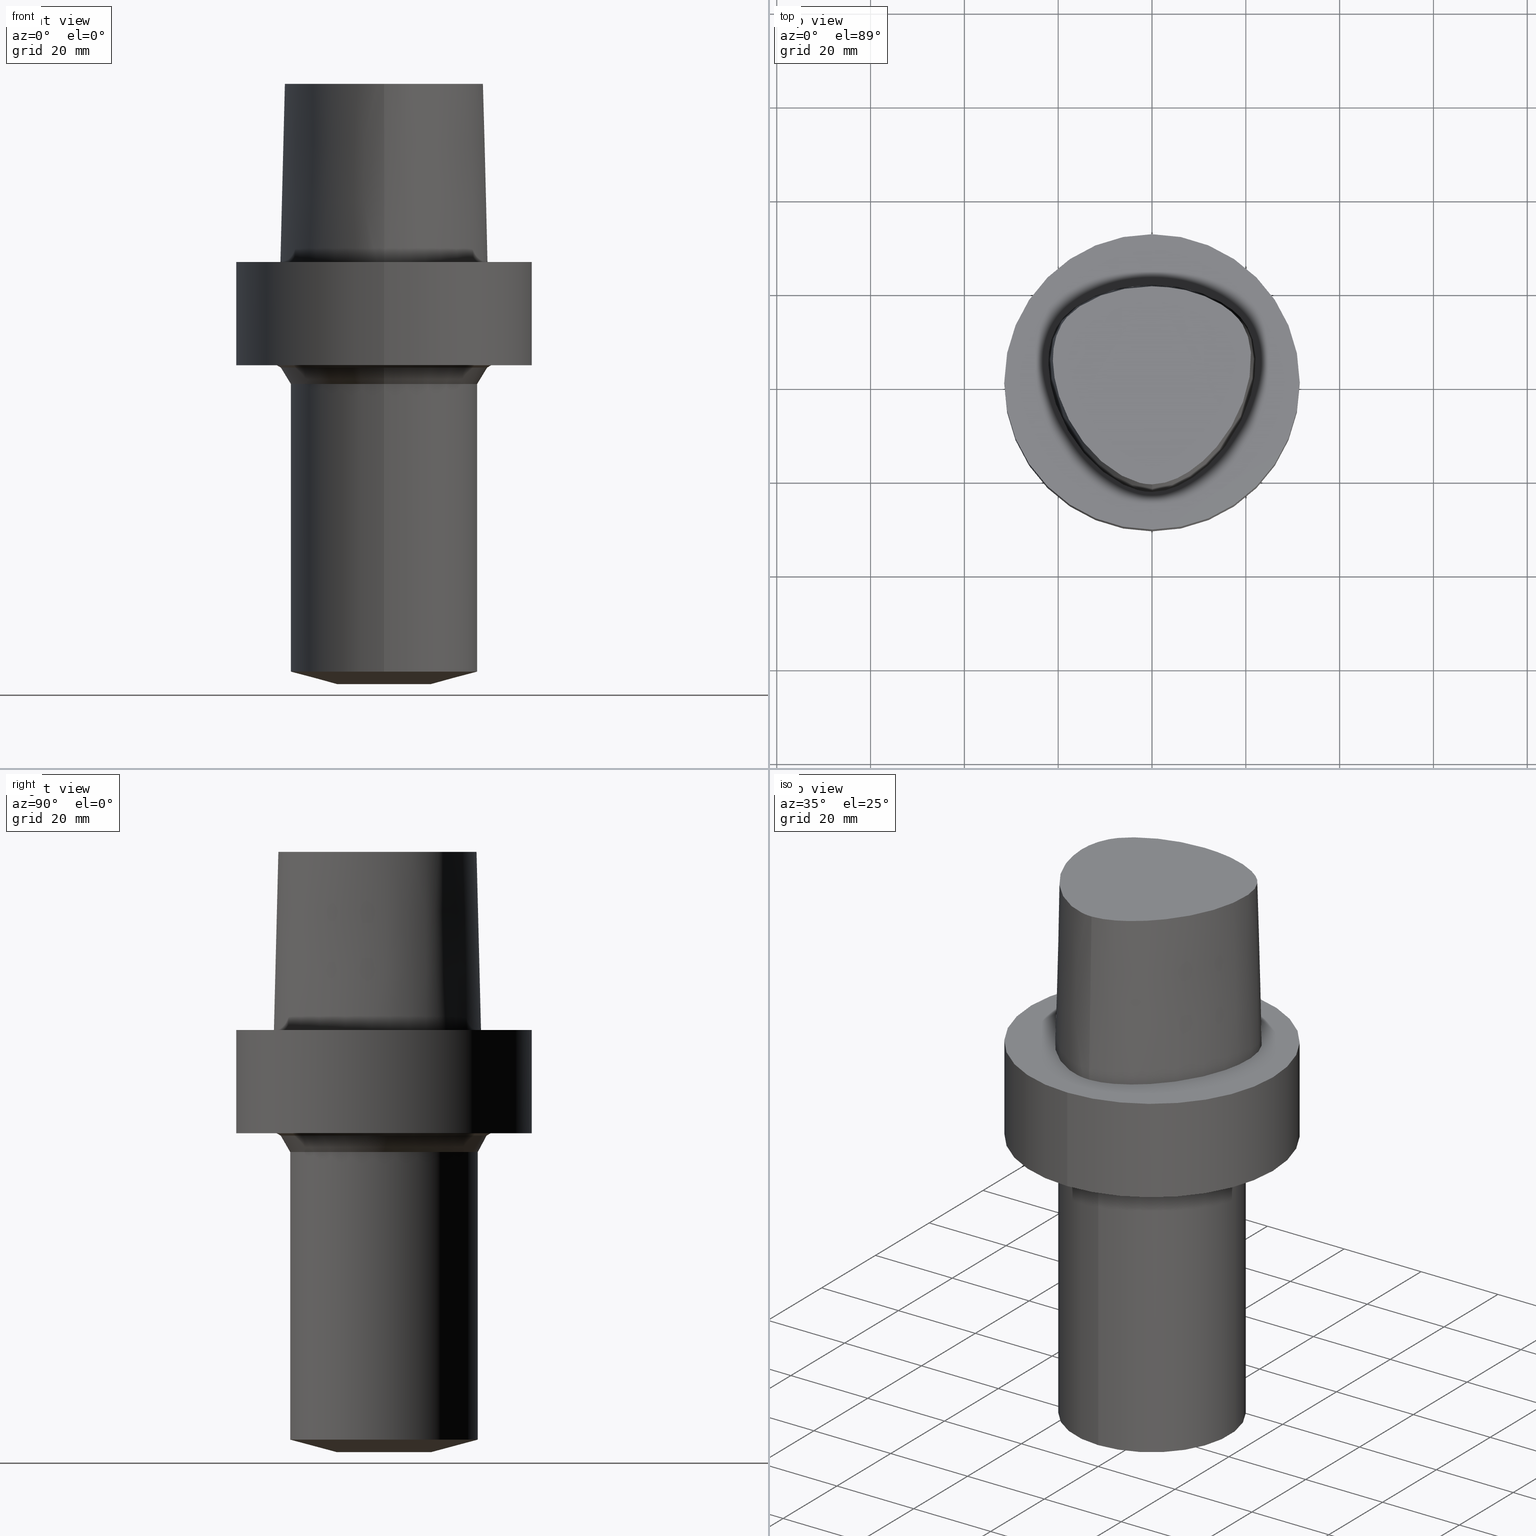
[diagram: canonical four-view strip — front | top / right | iso, engineering-drawing reading convention]
A machine part, canonical four-view strip (front | top / right | iso — engineering-drawing reading convention). The complete STEP part file that produces these views, byte-faithful:
ISO-10303-21;
HEADER;
FILE_DESCRIPTION((''),'1');
FILE_NAME('C:/temp/C6-BSL16-90.stp','2010-11-16T10:19:13',(''),(''),'Spatial Interop R18','Kubotek KeyCreator V8.5.1 (14335)',' ');
FILE_SCHEMA(('CONFIG_CONTROL_DESIGN'));
ENDSEC;
DATA;
#1=DESIGN_CONTEXT('',#27,'design');
#2=APPLICATION_PROTOCOL_DEFINITION('INTERNATIONAL STANDARD','config_control_design',1994,#27);
#3=PRODUCT_CATEGORY_RELATIONSHIP('NONE','NONE',#28,#29);
#4=DATE_AND_TIME(#30,#31);
#5=DATE_TIME_ROLE('creation_date');
#6=DATE_TIME_ROLE('classification_date');
#7=PERSON_AND_ORGANIZATION_ROLE('creator');
#8=PERSON_AND_ORGANIZATION_ROLE('design_supplier');
#9=PERSON_AND_ORGANIZATION_ROLE('classification_officer');
#10=PERSON_AND_ORGANIZATION_ROLE('design_owner');
#11=APPROVAL_PERSON_ORGANIZATION(#32,#33,#34);
#12=APPROVAL_DATE_TIME(#4,#33);
#13=CC_DESIGN_APPROVAL(#33,(#35,#36,#37));
#14=CC_DESIGN_DATE_AND_TIME_ASSIGNMENT(#4,#5,(#37));
#15=CC_DESIGN_DATE_AND_TIME_ASSIGNMENT(#4,#6,(#35));
#16=CC_DESIGN_PERSON_AND_ORGANIZATION_ASSIGNMENT(#32,#10,(#38));
#17=CC_DESIGN_PERSON_AND_ORGANIZATION_ASSIGNMENT(#32,#7,(#37));
#18=CC_DESIGN_PERSON_AND_ORGANIZATION_ASSIGNMENT(#32,#7,(#36));
#19=CC_DESIGN_PERSON_AND_ORGANIZATION_ASSIGNMENT(#32,#8,(#36));
#20=CC_DESIGN_SECURITY_CLASSIFICATION(#35,(#36));
#21=CC_DESIGN_PERSON_AND_ORGANIZATION_ASSIGNMENT(#32,#9,(#35));
#22=SHAPE_DEFINITION_REPRESENTATION(#39,#40);
#23= (GEOMETRIC_REPRESENTATION_CONTEXT(3)GLOBAL_UNCERTAINTY_ASSIGNED_CONTEXT((#43))GLOBAL_UNIT_ASSIGNED_CONTEXT((#45,#46,#47))REPRESENTATION_CONTEXT('NONE','WORKSPACE'));
#27=APPLICATION_CONTEXT('CONFIGURATION CONTROLLED 3D DESIGNS OF MECHANICAL PARTS AND ASSEMBLIES');
#28=PRODUCT_CATEGORY('part','NONE');
#29=PRODUCT_RELATED_PRODUCT_CATEGORY('detail',' ',(#38));
#30=CALENDAR_DATE(2010,16,10);
#31=LOCAL_TIME(19,19,13.0,#49);
#32=PERSON_AND_ORGANIZATION(#50,#51);
#33=APPROVAL(#52,'SOLID MODEL');
#34=APPROVAL_ROLE('APPROVED');
#35=SECURITY_CLASSIFICATION('','',#53);
#36=PRODUCT_DEFINITION_FORMATION_WITH_SPECIFIED_SOURCE(' ','NONE',#38,.NOT_KNOWN.);
#37=PRODUCT_DEFINITION('NONE','NONE',#36,#1);
#38=PRODUCT('1','1','PART-1-DESC',(#54));
#39=PRODUCT_DEFINITION_SHAPE('NONE','NONE',#37);
#40=ADVANCED_BREP_SHAPE_REPRESENTATION('1',(#55,#56),#23);
#43=UNCERTAINTY_MEASURE_WITH_UNIT(LENGTH_MEASURE(1.0E-006),#45,'','');
#45= (CONVERSION_BASED_UNIT('MILLIMETRE',#59)LENGTH_UNIT()NAMED_UNIT(#62));
#46= (NAMED_UNIT(#64)PLANE_ANGLE_UNIT()SI_UNIT($,.RADIAN.));
#47= (NAMED_UNIT(#64)SOLID_ANGLE_UNIT()SI_UNIT($,.STERADIAN.));
#49=COORDINATED_UNIVERSAL_TIME_OFFSET(9,0,.AHEAD.);
#50=PERSON('','UNSPECIFIED',$,$,$,$);
#51=ORGANIZATION('UNSPECIFIED','UNSPECIFIED','UNSPECIFIED');
#52=APPROVAL_STATUS('approved');
#53=SECURITY_CLASSIFICATION_LEVEL('unclassified');
#54=MECHANICAL_CONTEXT('',#27,'mechanical');
#55=MANIFOLD_SOLID_BREP('1',#70);
#56=AXIS2_PLACEMENT_3D('',#71,#72,#73);
#59=LENGTH_MEASURE_WITH_UNIT(LENGTH_MEASURE(1.0),#74);
#62=DIMENSIONAL_EXPONENTS(1.0,0.0,0.0,0.0,0.0,0.0,0.0);
#64=DIMENSIONAL_EXPONENTS(0.0,0.0,0.0,0.0,0.0,0.0,0.0);
#70=CLOSED_SHELL('',(#75,#76,#77,#78,#79,#80,#81,#82,#83,#84,#85,#86));
#71=CARTESIAN_POINT('',(0.0,0.0,0.0));
#72=DIRECTION('',(0.0,0.0,1.0));
#73=DIRECTION('',(1.0,0.0,0.0));
#74= (NAMED_UNIT(#62)LENGTH_UNIT()SI_UNIT(.MILLI.,.METRE.));
#75=ADVANCED_FACE('',(#88,#89),#90,.T.);
#76=ADVANCED_FACE('',(#91,#92),#93,.T.);
#77=ADVANCED_FACE('',(#94,#95),#96,.T.);
#78=ADVANCED_FACE('',(#97,#98),#99,.T.);
#79=ADVANCED_FACE('',(#100,#101),#102,.T.);
#80=ADVANCED_FACE('',(#103,#104),#105,.T.);
#81=ADVANCED_FACE('',(#106,#107),#108,.T.);
#82=ADVANCED_FACE('',(#109),#110,.T.);
#83=ADVANCED_FACE('',(#111),#112,.T.);
#84=ADVANCED_FACE('',(#113),#114,.T.);
#85=ADVANCED_FACE('',(#115),#116,.T.);
#86=ADVANCED_FACE('',(#117),#118,.T.);
#88=FACE_OUTER_BOUND('',#119,.T.);
#89=FACE_BOUND('',#120,.T.);
#90=PLANE('',#121);
#91=FACE_BOUND('',#122,.T.);
#92=FACE_BOUND('',#123,.T.);
#93=CONICAL_SURFACE('',#124,15.0000000010874,1.30899693717722);
#94=FACE_BOUND('',#125,.T.);
#95=FACE_BOUND('',#126,.T.);
#96=CYLINDRICAL_SURFACE('',#127,20.0);
#97=FACE_BOUND('',#128,.T.);
#98=FACE_BOUND('',#129,.T.);
#99=CONICAL_SURFACE('',#130,21.0103629684461,0.523598773957024);
#100=FACE_BOUND('',#131,.T.);
#101=FACE_BOUND('',#132,.T.);
#102=CONICAL_SURFACE('',#133,22.4537386434461,1.04719755);
#103=FACE_BOUND('',#134,.T.);
#104=FACE_BOUND('',#135,.T.);
#105=CYLINDRICAL_SURFACE('',#136,31.4925);
#106=FACE_OUTER_BOUND('',#137,.T.);
#107=FACE_BOUND('',#138,.T.);
#108=PLANE('',#139);
#109=FACE_OUTER_BOUND('',#140,.T.);
#110=PLANE('',#141);
#111=FACE_OUTER_BOUND('',#142,.T.);
#112=B_SPLINE_SURFACE_WITH_KNOTS('',3,3,((#143,#144,#145,#146),(#147,#148,#149,#150),(#151,#152,#153,#154),(#155,#156,#157,#158),(#159,#160,#161,#162),(#163,#164,#165,#166),(#167,#168,#169,#170),(#171,#172,#173,#174),(#175,#176,#177,#178),(#179,#180,#181,#182),(#183,#184,#185,#186),(#187,#188,#189,#190),(#191,#192,#193,#194),(#195,#196,#197,#198),(#199,#200,#201,#202),(#203,#204,#205,#206),(#207,#208,#209,#210)),.UNSPECIFIED.,.F.,.F.,.F.,(4,1,1,1,1,1,1,1,1,1,1,1,1,1,4),(4,4),(-13.2302678617486,-12.816821991069,-12.4033761203893,-11.9899302497097,-11.57648437903,-11.1630385083504,-10.9563155730106,-10.7495926376707,-10.3361467669911,-9.92270089631145,-9.09580915495216,-8.26891741359287,-7.44202567223358,-7.02857980155394,-6.6151339308743),(-3.8,0.0),.UNSPECIFIED.);
#113=FACE_OUTER_BOUND('',#211,.T.);
#114=B_SPLINE_SURFACE_WITH_KNOTS('',3,3,((#212,#213,#214,#215),(#216,#217,#218,#219),(#220,#221,#222,#223),(#224,#225,#226,#227),(#228,#229,#230,#231),(#232,#233,#234,#235),(#236,#237,#238,#239),(#240,#241,#242,#243),(#244,#245,#246,#247),(#248,#249,#250,#251),(#252,#253,#254,#255),(#256,#257,#258,#259),(#260,#261,#262,#263),(#264,#265,#266,#267),(#268,#269,#270,#271),(#272,#273,#274,#275),(#276,#277,#278,#279),(#280,#281,#282,#283)),.UNSPECIFIED.,.F.,.F.,.F.,(4,1,1,1,1,1,1,1,1,2,1,1,1,1,4),(4,4),(-6.6151339308743,-6.20168806019465,-5.78824218951501,-5.37479631883537,-4.96135044815572,-4.13445870679644,-3.30756696543715,-2.89412109475751,-2.48067522407786,-2.06722935339822,-1.65378348271857,-1.24033761203893,-0.826891741359287,-0.413445870679644,0.0),(-3.8,0.0),.UNSPECIFIED.);
#115=FACE_OUTER_BOUND('',#284,.T.);
#116=CONICAL_SURFACE('',#285,1.0,0.0249931148314473);
#117=FACE_OUTER_BOUND('',#286,.T.);
#118=PLANE('',#287);
#119=EDGE_LOOP('',(#288));
#120=EDGE_LOOP('',(#289,#290,#291));
#121=AXIS2_PLACEMENT_3D('',#292,#293,#294);
#122=EDGE_LOOP('',(#295));
#123=EDGE_LOOP('',(#296));
#124=AXIS2_PLACEMENT_3D('',#297,#298,#299);
#125=EDGE_LOOP('',(#300));
#126=EDGE_LOOP('',(#301));
#127=AXIS2_PLACEMENT_3D('',#302,#303,#304);
#128=EDGE_LOOP('',(#305));
#129=EDGE_LOOP('',(#306));
#130=AXIS2_PLACEMENT_3D('',#307,#308,#309);
#131=EDGE_LOOP('',(#310));
#132=EDGE_LOOP('',(#311));
#133=AXIS2_PLACEMENT_3D('',#312,#313,#314);
#134=EDGE_LOOP('',(#315));
#135=EDGE_LOOP('',(#316));
#136=AXIS2_PLACEMENT_3D('',#317,#318,#319);
#137=EDGE_LOOP('',(#320));
#138=EDGE_LOOP('',(#321));
#139=AXIS2_PLACEMENT_3D('',#322,#323,#324);
#140=EDGE_LOOP('',(#325));
#141=AXIS2_PLACEMENT_3D('',#326,#327,#328);
#142=EDGE_LOOP('',(#329,#330,#331,#332));
#143=CARTESIAN_POINT('',(-0.001218367817519,19.7276822012873,38.0));
#144=CARTESIAN_POINT('',(0.014082083248157,20.0439577123075,25.3333333333066));
#145=CARTESIAN_POINT('',(0.029382534313671,20.3602332232908,12.6666666666934));
#146=CARTESIAN_POINT('',(0.044682985379347,20.6765087343109,0.0));
#147=CARTESIAN_POINT('',(1.37788651195108,19.6609652834875,38.0));
#148=CARTESIAN_POINT('',(1.3931885827258,19.9772407169847,25.3333333333066));
#149=CARTESIAN_POINT('',(1.40849065356095,20.2935162254648,12.6666666666934));
#150=CARTESIAN_POINT('',(1.42379272427753,20.6097915814392,0.0));
#151=CARTESIAN_POINT('',(4.135446440878,19.5347778787784,38.0));
#152=CARTESIAN_POINT('',(4.16466278851883,19.8511031866125,25.3333333333066));
#153=CARTESIAN_POINT('',(4.1938791526746,20.1674284644204,12.6666666666934));
#154=CARTESIAN_POINT('',(4.2230955003445,20.4837538303966,0.0));
#155=CARTESIAN_POINT('',(8.213607363795,18.7706026638736,38.0));
#156=CARTESIAN_POINT('',(8.29980745008421,19.0767495109635,25.3333333333066));
#157=CARTESIAN_POINT('',(8.38600751285747,19.3828964329996,12.6666666666934));
#158=CARTESIAN_POINT('',(8.47220762821777,19.6890432607088,0.0));
#159=CARTESIAN_POINT('',(12.1316338645671,17.3698624840857,38.0));
#160=CARTESIAN_POINT('',(12.2591308270381,17.6610739397708,25.3333333333066));
#161=CARTESIAN_POINT('',(12.3866278083543,17.9522853923553,12.6666666666934));
#162=CARTESIAN_POINT('',(12.5141247708253,18.2434968480404,0.0));
#163=CARTESIAN_POINT('',(15.7706546153679,15.3789501349612,38.0));
#164=CARTESIAN_POINT('',(15.9483905900895,15.6437731794811,25.3333333333066));
#165=CARTESIAN_POINT('',(16.1261265513272,15.9085961736944,12.6666666666934));
#166=CARTESIAN_POINT('',(16.3038624872874,16.1734192182143,0.0));
#167=CARTESIAN_POINT('',(18.4265894256284,13.0570022172893,38.0));
#168=CARTESIAN_POINT('',(18.6659567517146,13.2725589420689,25.3333333333066));
#169=CARTESIAN_POINT('',(18.9053240921419,13.4881156488541,12.6666666666934));
#170=CARTESIAN_POINT('',(19.1446913988473,13.7036723639434,0.0));
#171=CARTESIAN_POINT('',(19.8679958653038,10.6923771981998,38.0));
#172=CARTESIAN_POINT('',(20.1559937048299,10.8287388264873,25.3333333333066));
#173=CARTESIAN_POINT('',(20.4439915656177,10.965100461641,12.6666666666934));
#174=CARTESIAN_POINT('',(20.7319894342149,11.1014620996188,0.0));
#175=CARTESIAN_POINT('',(20.8470867582337,8.07149548576131,38.0));
#176=CARTESIAN_POINT('',(21.1591164072431,8.14132775555392,25.3333333333066));
#177=CARTESIAN_POINT('',(21.4711459821861,8.21116003697855,12.6666666666934));
#178=CARTESIAN_POINT('',(21.7831756505763,8.28099229708081,0.0));
#179=CARTESIAN_POINT('',(21.2693244256982,4.61157245650171,38.0));
#180=CARTESIAN_POINT('',(21.5881576801997,4.6105997689982,25.3333333333066));
#181=CARTESIAN_POINT('',(21.9069908544037,4.60962709346857,12.6666666666934));
#182=CARTESIAN_POINT('',(22.2258240701438,4.60865440596506,0.0));
#183=CARTESIAN_POINT('',(20.8071610855575,-0.912828649855193,38.0));
#184=CARTESIAN_POINT('',(21.119311671178,-0.979640884839481,25.3333333333066));
#185=CARTESIAN_POINT('',(21.4314624224461,-1.04645306732201,12.6666666666934));
#186=CARTESIAN_POINT('',(21.7436130080666,-1.11326526354485,0.0));
#187=CARTESIAN_POINT('',(18.6841935581315,-7.54428794252837,38.0));
#188=CARTESIAN_POINT('',(18.9734452551861,-7.6809665891091,25.3333333333066));
#189=CARTESIAN_POINT('',(19.2626970689956,-7.81764505382656,12.6666666666934));
#190=CARTESIAN_POINT('',(19.5519487660502,-7.95432366164584,0.0));
#191=CARTESIAN_POINT('',(14.2175552814,-14.5971504342323,38.0));
#192=CARTESIAN_POINT('',(14.4641757465198,-14.8010930946929,25.3333333333066));
#193=CARTESIAN_POINT('',(14.710796247264,-15.0050359737917,12.6666666666934));
#194=CARTESIAN_POINT('',(14.9574167123838,-15.2089785567293,0.0));
#195=CARTESIAN_POINT('',(9.0844808732933,-19.3179298129689,38.0));
#196=CARTESIAN_POINT('',(9.27912152349017,-19.572866915557,25.3333333333066));
#197=CARTESIAN_POINT('',(9.47376218971294,-19.827804295621,12.6666666666934));
#198=CARTESIAN_POINT('',(9.66840283021945,-20.0827414369705,0.0));
#199=CARTESIAN_POINT('',(4.17112919194182,-21.8987568152736,38.0));
#200=CARTESIAN_POINT('',(4.28618163483998,-22.1973837173649,25.3333333333066));
#201=CARTESIAN_POINT('',(4.40123406239433,-22.4960105163661,12.6666666666934));
#202=CARTESIAN_POINT('',(4.51628650521788,-22.7946374572188,0.0));
#203=CARTESIAN_POINT('',(1.41533654381097,-22.5120888467812,38.0));
#204=CARTESIAN_POINT('',(1.46311520162011,-22.8284916374445,25.3333333333066));
#205=CARTESIAN_POINT('',(1.51089385942236,-23.144894486341,12.6666666666934));
#206=CARTESIAN_POINT('',(1.55867251738073,-23.4612972770043,0.0));
#207=CARTESIAN_POINT('',(0.038736923393866,-22.5191997536361,38.0));
#208=CARTESIAN_POINT('',(0.04035580478973,-22.8358410047159,25.3333333333066));
#209=CARTESIAN_POINT('',(0.041974686185626,-23.1524822558133,12.6666666666934));
#210=CARTESIAN_POINT('',(0.04359356758149,-23.4691235068931,0.0));
#211=EDGE_LOOP('',(#333,#334,#335,#336));
#212=CARTESIAN_POINT('',(0.038736923393866,-22.5191997536361,38.0));
#213=CARTESIAN_POINT('',(0.04035580478973,-22.8358410047159,25.3333333333066));
#214=CARTESIAN_POINT('',(0.041974686185626,-23.1524822558133,12.6666666666934));
#215=CARTESIAN_POINT('',(0.04359356758149,-23.4691235068931,0.0));
#216=CARTESIAN_POINT('',(-1.33786123484754,-22.5261650259856,38.0));
#217=CARTESIAN_POINT('',(-1.38240731367927,-22.8430399310626,25.3333333333066));
#218=CARTESIAN_POINT('',(-1.42695339249092,-23.1599147815484,12.6666666666934));
#219=CARTESIAN_POINT('',(-1.4714994713963,-23.4767895315797,0.0));
#220=CARTESIAN_POINT('',(-4.08909358431842,-21.9268839879558,38.0));
#221=CARTESIAN_POINT('',(-4.20580731135515,-22.2249725500078,25.3333333333066));
#222=CARTESIAN_POINT('',(-4.32252104640446,-22.5230611651922,12.6666666666934));
#223=CARTESIAN_POINT('',(-4.43923476371401,-22.821149804767,0.0));
#224=CARTESIAN_POINT('',(-7.8333083619947,-19.9973514861616,38.0));
#225=CARTESIAN_POINT('',(-8.00568301809614,-20.2649260859405,25.3333333333066));
#226=CARTESIAN_POINT('',(-8.1780576640789,-20.532500564315,12.6666666666934));
#227=CARTESIAN_POINT('',(-8.35043230079961,-20.8000751253325,0.0));
#228=CARTESIAN_POINT('',(-11.1035071147626,-17.450554957873,38.0));
#229=CARTESIAN_POINT('',(-11.3173048160562,-17.6855739222454,25.3333333333066));
#230=CARTESIAN_POINT('',(-11.5311025116181,-17.9205928617968,12.6666666666934));
#231=CARTESIAN_POINT('',(-11.744900222602,-18.1556117874078,0.0));
#232=CARTESIAN_POINT('',(-14.9379535189057,-13.461132049697,38.0));
#233=CARTESIAN_POINT('',(-15.191622410671,-13.6542981711372,25.3333333333066));
#234=CARTESIAN_POINT('',(-15.4452913389853,-13.8474645327131,12.6666666666934));
#235=CARTESIAN_POINT('',(-15.6989602501314,-14.0406306929147,0.0));
#236=CARTESIAN_POINT('',(-18.6681263017223,-7.59391757463204,38.0));
#237=CARTESIAN_POINT('',(-18.9571800800711,-7.73136168081928,25.3333333333066));
#238=CARTESIAN_POINT('',(-19.2462337287194,-7.86880572399774,12.6666666666934));
#239=CARTESIAN_POINT('',(-19.5352875070682,-8.00624990770787,0.0));
#240=CARTESIAN_POINT('',(-20.7857899858339,-0.952862819790525,38.0));
#241=CARTESIAN_POINT('',(-21.0973808305434,-1.02218087467418,25.3333333333066));
#242=CARTESIAN_POINT('',(-21.408971677436,-1.09149899580772,12.6666666666934));
#243=CARTESIAN_POINT('',(-21.7205626190491,-1.16081708945282,0.0));
#244=CARTESIAN_POINT('',(-21.2911760556836,4.5469215763113,38.0));
#245=CARTESIAN_POINT('',(-21.610337904926,4.54783292082248,25.3333333333066));
#246=CARTESIAN_POINT('',(-21.9294998290918,4.54874426225691,12.6666666666934));
#247=CARTESIAN_POINT('',(-22.2486616783342,4.54965558738736,0.0));
#248=CARTESIAN_POINT('',(-20.7345309521958,8.74909381391006,38.0));
#249=CARTESIAN_POINT('',(-21.0445680426217,8.83349432450556,25.3333333333066));
#250=CARTESIAN_POINT('',(-21.3546050933631,8.91789488065068,12.6666666666934));
#251=CARTESIAN_POINT('',(-21.6646421256468,9.00229539124618,0.0));
#252=CARTESIAN_POINT('',(-19.5531512296439,11.3174844040833,38.0));
#253=CARTESIAN_POINT('',(-19.8336219699984,11.4710077674213,25.3333333333066));
#254=CARTESIAN_POINT('',(-20.1140927680763,11.6245311337623,12.6666666666934));
#255=CARTESIAN_POINT('',(-20.3945635471922,11.7780544971003,0.0));
#256=CARTESIAN_POINT('',(-17.9100913688793,13.524027510437,38.0));
#257=CARTESIAN_POINT('',(-18.1375785458768,13.7487051053655,25.3333333333066));
#258=CARTESIAN_POINT('',(-18.365065665211,13.9733826973296,12.6666666666934));
#259=CARTESIAN_POINT('',(-18.5925528034471,14.1980602922581,0.0));
#260=CARTESIAN_POINT('',(-15.7996349656398,15.3762170634413,38.0));
#261=CARTESIAN_POINT('',(-15.9739761051783,15.6434029846179,25.3333333333066));
#262=CARTESIAN_POINT('',(-16.1483172726872,15.9105889315134,12.6666666666934));
#263=CARTESIAN_POINT('',(-16.3226584122258,16.1777748720707,0.0));
#264=CARTESIAN_POINT('',(-12.1175640002064,17.3825162484012,38.0));
#265=CARTESIAN_POINT('',(-12.2475895903055,17.6724842099619,25.3333333333066));
#266=CARTESIAN_POINT('',(-12.3776152070492,17.9624521925696,12.6666666666934));
#267=CARTESIAN_POINT('',(-12.5076407874579,18.2524201541303,0.0));
#268=CARTESIAN_POINT('',(-8.21761151654222,18.7588585989994,38.0));
#269=CARTESIAN_POINT('',(-8.30099497910627,19.0656105427881,25.3333333333066));
#270=CARTESIAN_POINT('',(-8.38437843913309,19.3723624535439,12.6666666666934));
#271=CARTESIAN_POINT('',(-8.46776192107786,19.679114377952,0.0));
#272=CARTESIAN_POINT('',(-4.13466093881225,19.5396850837055,38.0));
#273=CARTESIAN_POINT('',(-4.16658562115465,19.8557172636973,25.3333333333066));
#274=CARTESIAN_POINT('',(-4.19851029939059,20.1717494367229,12.6666666666934));
#275=CARTESIAN_POINT('',(-4.23043497193604,20.487781597334,0.0));
#276=CARTESIAN_POINT('',(-1.37917220403684,19.6638560588908,38.0));
#277=CARTESIAN_POINT('',(-1.39382511685176,19.98016223565,25.3333333333066));
#278=CARTESIAN_POINT('',(-1.40847802945569,20.296468399885,12.6666666666934));
#279=CARTESIAN_POINT('',(-1.42313094248379,20.6127745766442,0.0));
#280=CARTESIAN_POINT('',(-0.001218547003662,19.7276821925089,38.0));
#281=CARTESIAN_POINT('',(-0.015869696232855,20.043988446791,25.3333333333066));
#282=CARTESIAN_POINT('',(-0.030520845462092,20.3602947010464,12.6666666666934));
#283=CARTESIAN_POINT('',(-0.045171994691285,20.6766009553285,0.0));
#284=EDGE_LOOP('',(#337,#338,#339));
#285=AXIS2_PLACEMENT_3D('',#340,#341,#342);
#286=EDGE_LOOP('',(#343,#344));
#287=AXIS2_PLACEMENT_3D('',#345,#346,#347);
#288=ORIENTED_EDGE('',*,*,#348,.F.);
#289=ORIENTED_EDGE('',*,*,#349,.F.);
#290=ORIENTED_EDGE('',*,*,#350,.F.);
#291=ORIENTED_EDGE('',*,*,#351,.F.);
#292=CARTESIAN_POINT('',(-1.940875E-031,15.74625,1.928359E-015));
#293=DIRECTION('',(0.0,0.0,1.0));
#294=DIRECTION('',(1.0,-0.0,0.0));
#295=ORIENTED_EDGE('',*,*,#352,.T.);
#296=ORIENTED_EDGE('',*,*,#353,.F.);
#297=CARTESIAN_POINT('',(5.428875E-015,1.085775E-014,-88.660254036406));
#298=DIRECTION('',(-0.0,-0.0,1.0));
#299=DIRECTION('',(0.0,1.0,0.0));
#300=ORIENTED_EDGE('',*,*,#354,.T.);
#301=ORIENTED_EDGE('',*,*,#352,.F.);
#302=CARTESIAN_POINT('',(3.46944E-015,6.93888E-015,-56.6602540387473));
#303=DIRECTION('',(-0.0,-0.0,1.0));
#304=DIRECTION('',(0.0,1.0,0.0));
#305=ORIENTED_EDGE('',*,*,#355,.T.);
#306=ORIENTED_EDGE('',*,*,#354,.F.);
#307=CARTESIAN_POINT('',(1.484884E-015,2.969768E-015,-24.2500000050327));
#308=DIRECTION('',(-0.0,-0.0,1.0));
#309=DIRECTION('',(0.0,1.0,0.0));
#310=ORIENTED_EDGE('',*,*,#356,.T.);
#311=ORIENTED_EDGE('',*,*,#355,.F.);
#312=CARTESIAN_POINT('',(1.36242E-015,2.724839E-015,-22.2500000026914));
#313=DIRECTION('',(-0.0,-0.0,1.0));
#314=DIRECTION('',(0.0,1.0,0.0));
#315=ORIENTED_EDGE('',*,*,#348,.T.);
#316=ORIENTED_EDGE('',*,*,#357,.F.);
#317=CARTESIAN_POINT('',(6.735557E-016,1.347111E-015,-11.0));
#318=DIRECTION('',(-0.0,-0.0,1.0));
#319=DIRECTION('',(0.0,1.0,0.0));
#320=ORIENTED_EDGE('',*,*,#357,.T.);
#321=ORIENTED_EDGE('',*,*,#356,.F.);
#322=CARTESIAN_POINT('',(1.347111E-015,27.189625675,-22.0));
#323=DIRECTION('',(0.0,0.0,-1.0));
#324=DIRECTION('',(0.0,-1.0,0.0));
#325=ORIENTED_EDGE('',*,*,#353,.T.);
#326=CARTESIAN_POINT('',(5.510911E-015,5.00000000108743,-90.0));
#327=DIRECTION('',(0.0,0.0,-1.0));
#328=DIRECTION('',(0.0,-1.0,0.0));
#329=ORIENTED_EDGE('',*,*,#349,.T.);
#330=ORIENTED_EDGE('',*,*,#358,.F.);
#331=ORIENTED_EDGE('',*,*,#359,.F.);
#332=ORIENTED_EDGE('',*,*,#360,.T.);
#333=ORIENTED_EDGE('',*,*,#350,.T.);
#334=ORIENTED_EDGE('',*,*,#360,.F.);
#335=ORIENTED_EDGE('',*,*,#361,.F.);
#336=ORIENTED_EDGE('',*,*,#362,.T.);
#337=ORIENTED_EDGE('',*,*,#351,.T.);
#338=ORIENTED_EDGE('',*,*,#362,.F.);
#339=ORIENTED_EDGE('',*,*,#358,.T.);
#340=CARTESIAN_POINT('',(-0.001218547003662,19.7276821925089,-2.00268782779425));
#341=DIRECTION('',(-0.0,-0.0,-1.0));
#342=DIRECTION('',(-0.046269895968506,0.99892897481606,0.0));
#343=ORIENTED_EDGE('',*,*,#361,.T.);
#344=ORIENTED_EDGE('',*,*,#359,.T.);
#345=CARTESIAN_POINT('',(0.008647668684817,1.77491953635526,38.0));
#346=DIRECTION('',(0.0,0.0,1.0));
#347=DIRECTION('',(1.0,-0.0,0.0));
#348=EDGE_CURVE('',#363,#363,#364,.T.);
#349=EDGE_CURVE('',#365,#366,#367,.T.);
#350=EDGE_CURVE('',#368,#365,#369,.T.);
#351=EDGE_CURVE('',#366,#368,#370,.T.);
#352=EDGE_CURVE('',#371,#371,#372,.T.);
#353=EDGE_CURVE('',#373,#373,#374,.T.);
#354=EDGE_CURVE('',#375,#375,#376,.T.);
#355=EDGE_CURVE('',#377,#377,#378,.T.);
#356=EDGE_CURVE('',#379,#379,#380,.T.);
#357=EDGE_CURVE('',#381,#381,#382,.T.);
#358=EDGE_CURVE('',#383,#366,#384,.T.);
#359=EDGE_CURVE('',#385,#383,#386,.T.);
#360=EDGE_CURVE('',#385,#365,#387,.T.);
#361=EDGE_CURVE('',#383,#385,#388,.T.);
#362=EDGE_CURVE('',#383,#368,#389,.T.);
#363=VERTEX_POINT('',#390);
#364=CIRCLE('',#391,31.4925);
#365=VERTEX_POINT('',#392);
#366=VERTEX_POINT('',#393);
#367=B_SPLINE_CURVE_WITH_KNOTS('',3,(#394,#395,#396,#397,#398,#399,#400,#401,#402,#403,#404,#405,#406,#407,#408,#409,#410,#411,#412,#413,#414,#415,#416,#417,#418,#419,#420,#421,#422,#423,#424,#425),.UNSPECIFIED.,.F.,.F.,(4,2,2,2,2,2,2,2,2,2,2,2,2,2,2,4),(6.6151339308743,6.90353802293409,7.19194211499389,7.48034620705369,7.76875029911348,8.3273781966476,8.88600609418171,10.0632582234986,10.5220146921826,10.9807711608666,11.2101493952086,11.4395276295506,11.8982840982346,12.4281394376607,12.8292036497046,13.2302678617486),.UNSPECIFIED.);
#368=VERTEX_POINT('',#426);
#369=B_SPLINE_CURVE_WITH_KNOTS('',3,(#427,#428,#429,#430,#431,#432,#433,#434,#435,#436,#437,#438,#439,#440,#441,#442,#443,#444,#445,#446,#447,#448,#449,#450,#451,#452,#453,#454,#455,#456),.UNSPECIFIED.,.F.,.F.,(4,2,2,2,2,2,2,2,2,2,2,2,2,2,4),(0.0,0.576808184119594,1.15361636823919,1.43293031700624,1.7122442657733,1.99155821454036,2.27087216330741,2.85949822796588,3.15381126029511,3.44812429262434,4.36563722999232,5.28315016736029,5.8130055067864,6.21406971883035,6.6151339308743),.UNSPECIFIED.);
#370=CIRCLE('',#457,0.949936168379101);
#371=VERTEX_POINT('',#458);
#372=CIRCLE('',#459,20.0);
#373=VERTEX_POINT('',#460);
#374=CIRCLE('',#461,10.0000000021748);
#375=VERTEX_POINT('',#462);
#376=CIRCLE('',#463,20.0);
#377=VERTEX_POINT('',#464);
#378=CIRCLE('',#465,22.0207259368922);
#379=VERTEX_POINT('',#466);
#380=CIRCLE('',#467,22.88675135);
#381=VERTEX_POINT('',#468);
#382=CIRCLE('',#469,31.4925);
#383=VERTEX_POINT('',#470);
#384=LINE('',#471,#472);
#385=VERTEX_POINT('',#473);
#386=B_SPLINE_CURVE_WITH_KNOTS('',3,(#474,#475,#476,#477,#478,#479,#480,#481,#482,#483,#484,#485,#486,#487,#488,#489),.UNSPECIFIED.,.F.,.F.,(4,1,1,1,1,1,1,1,1,1,1,1,1,4),(6.61513393087475,6.99917207152274,7.48193246986995,7.96289324787093,8.45540287038584,9.10291653679981,9.67129810936083,10.1618749681153,10.6358867802489,11.1080734988593,11.6043706019633,12.09451993853,12.6985979284494,13.2302678617486),.UNSPECIFIED.);
#387=LINE('',#490,#491);
#388=B_SPLINE_CURVE_WITH_KNOTS('',3,(#492,#493,#494,#495,#496,#497,#498,#499,#500,#501,#502,#503,#504,#505,#506,#507),.UNSPECIFIED.,.F.,.F.,(4,1,1,1,1,1,1,1,1,1,1,1,1,4),(0.0,0.447924670568964,0.9388024242536,1.50591409090711,2.07314340012323,2.72424957442464,3.2253501842849,3.80982102049476,4.34867996267067,4.85900173381144,5.37972031856977,6.03459825488646,6.61113557741484,6.61513393087395),.UNSPECIFIED.);
#389=LINE('',#508,#509);
#390=CARTESIAN_POINT('',(-3.183036E-015,-31.4925,0.0));
#391=AXIS2_PLACEMENT_3D('',#510,#511,#512);
#392=CARTESIAN_POINT('',(0.04359356758149,-23.4691235068931,0.0));
#393=CARTESIAN_POINT('',(0.044682985379347,20.6765087343109,0.0));
#394=CARTESIAN_POINT('',(0.04359356758149,-23.4691235068931,0.0));
#395=CARTESIAN_POINT('',(1.1004598519742,-23.4637201011149,7.105427E-015));
#396=CARTESIAN_POINT('',(2.14400887535539,-23.2973076591387,0.0));
#397=CARTESIAN_POINT('',(4.1424681795584,-22.7592077909815,0.0));
#398=CARTESIAN_POINT('',(5.09815205870591,-22.390397570418,-7.105427E-015));
#399=CARTESIAN_POINT('',(6.9351099930747,-21.5078613163183,-7.105427E-015));
#400=CARTESIAN_POINT('',(7.80351845767777,-20.9996631554928,-7.105427E-015));
#401=CARTESIAN_POINT('',(9.46943987011575,-19.8886274331692,-7.105427E-015));
#402=CARTESIAN_POINT('',(10.2666299015956,-19.2853057570752,-7.105427E-015));
#403=CARTESIAN_POINT('',(12.5026318141948,-17.3963733278614,2.131628E-014));
#404=CARTESIAN_POINT('',(13.8422909676271,-16.0046937991299,0.0));
#405=CARTESIAN_POINT('',(16.2509822407142,-13.0101546997628,1.421085E-014));
#406=CARTESIAN_POINT('',(17.3206577927156,-11.4078127381174,-7.105427E-015));
#407=CARTESIAN_POINT('',(20.1948648257688,-6.17855164445771,-7.105427E-015));
#408=CARTESIAN_POINT('',(21.5264998810762,-2.27044916431131,-7.105427E-015));
#409=CARTESIAN_POINT('',(22.1083077940609,3.36511341978747,-7.105427E-015));
#410=CARTESIAN_POINT('',(22.1437891560423,4.95691742010578,-7.105427E-015));
#411=CARTESIAN_POINT('',(21.7438554055,8.21486313336421,-7.105427E-015));
#412=CARTESIAN_POINT('',(21.2813238062713,9.87761881981491,0.0));
#413=CARTESIAN_POINT('',(20.1794569882097,12.0317423962685,0.0));
#414=CARTESIAN_POINT('',(19.7024138468366,12.7593191234763,-7.105427E-015));
#415=CARTESIAN_POINT('',(18.6262164065722,14.0443851003557,-7.105427E-015));
#416=CARTESIAN_POINT('',(18.0388107856225,14.6116679410871,0.0));
#417=CARTESIAN_POINT('',(16.1284788612342,16.197117807416,7.105427E-015));
#418=CARTESIAN_POINT('',(14.7618818860482,17.03003182658,0.0));
#419=CARTESIAN_POINT('',(11.6856166176821,18.5458506425855,0.0));
#420=CARTESIAN_POINT('',(9.96274972961394,19.1800623227596,0.0));
#421=CARTESIAN_POINT('',(6.84723700488339,20.0025241142556,0.0));
#422=CARTESIAN_POINT('',(5.4719505740624,20.2496312304465,0.0));
#423=CARTESIAN_POINT('',(2.7387517037224,20.5467807312008,0.0));
#424=CARTESIAN_POINT('',(1.38248716057628,20.6117898211938,0.0));
#425=CARTESIAN_POINT('',(0.044682985379347,20.6765087343109,0.0));
#426=CARTESIAN_POINT('',(-0.045171994691285,20.6766009553285,0.0));
#427=CARTESIAN_POINT('',(-0.045171994691285,20.6766009553285,0.0));
#428=CARTESIAN_POINT('',(-1.96758797023018,20.5875555983123,0.0));
#429=CARTESIAN_POINT('',(-3.95342611673668,20.4850284912479,-1.421085E-014));
#430=CARTESIAN_POINT('',(-7.86342529995983,19.7967909190733,7.105427E-015));
#431=CARTESIAN_POINT('',(-9.79439573378639,19.2503426360022,-1.421085E-014));
#432=CARTESIAN_POINT('',(-12.5351742003408,18.1332577991903,0.0));
#433=CARTESIAN_POINT('',(-13.4106560097683,17.7191970550452,0.0));
#434=CARTESIAN_POINT('',(-15.1227536857037,16.7802221286297,7.105427E-015));
#435=CARTESIAN_POINT('',(-15.9615364355591,16.2592643918937,0.0));
#436=CARTESIAN_POINT('',(-17.5597683566648,15.0665385774434,0.0));
#437=CARTESIAN_POINT('',(-18.3143568572283,14.3955246024635,-7.105427E-015));
#438=CARTESIAN_POINT('',(-19.638502795217,12.8665014798265,-7.105427E-015));
#439=CARTESIAN_POINT('',(-20.1979602542332,11.999774776593,0.0));
#440=CARTESIAN_POINT('',(-21.5622718142072,9.15853750369237,0.0));
#441=CARTESIAN_POINT('',(-21.9947483544612,7.02185767378744,0.0));
#442=CARTESIAN_POINT('',(-22.1134563193034,3.90325125553384,0.0));
#443=CARTESIAN_POINT('',(-22.0668279345839,2.87928778574124,0.0));
#444=CARTESIAN_POINT('',(-21.8551986681238,0.853042087412899,0.0));
#445=CARTESIAN_POINT('',(-21.6926789478513,-0.149498515836233,-1.421085E-014));
#446=CARTESIAN_POINT('',(-20.816421377794,-4.23736740865811,1.421085E-014));
#447=CARTESIAN_POINT('',(-19.659579746308,-7.20863943907163,-1.421085E-014));
#448=CARTESIAN_POINT('',(-16.574666895304,-12.7137973313948,0.0));
#449=CARTESIAN_POINT('',(-14.6473715787034,-15.2481179483411,-7.105427E-015));
#450=CARTESIAN_POINT('',(-11.050022952355,-18.7018400427945,7.105427E-015));
#451=CARTESIAN_POINT('',(-9.61826302632357,-19.8571497088389,0.0));
#452=CARTESIAN_POINT('',(-6.85491632421896,-21.5712784212,-1.421085E-014));
#453=CARTESIAN_POINT('',(-5.58035985461548,-22.2135461215161,0.0));
#454=CARTESIAN_POINT('',(-2.86743329636734,-23.1704091567902,0.0));
#455=CARTESIAN_POINT('',(-1.42611943322398,-23.4766376606116,0.0));
#456=CARTESIAN_POINT('',(0.04359356758149,-23.4691235068931,0.0));
#457=AXIS2_PLACEMENT_3D('',#513,#514,#515);
#458=CARTESIAN_POINT('',(1.020227E-015,-20.0,-87.320508072812));
#459=AXIS2_PLACEMENT_3D('',#516,#517,#518);
#460=CARTESIAN_POINT('',(4.204268E-015,-10.0000000021748,-90.0));
#461=AXIS2_PLACEMENT_3D('',#519,#520,#521);
#462=CARTESIAN_POINT('',(-9.643285E-016,-20.0,-26.0000000046826));
#463=AXIS2_PLACEMENT_3D('',#522,#523,#524);
#464=CARTESIAN_POINT('',(-1.334253E-015,-22.0207259368922,-22.5000000053828));
#465=AXIS2_PLACEMENT_3D('',#525,#526,#527);
#466=CARTESIAN_POINT('',(-1.440307E-015,-22.88675135,-22.0));
#467=AXIS2_PLACEMENT_3D('',#528,#529,#530);
#468=CARTESIAN_POINT('',(-3.183036E-015,-31.4925,-22.0));
#469=AXIS2_PLACEMENT_3D('',#531,#532,#533);
#470=CARTESIAN_POINT('',(-0.001218547003662,19.7276821925089,38.0));
#471=CARTESIAN_POINT('',(-0.001218547003662,19.7276821925089,38.0));
#472=VECTOR('',#534,38.0118715503078);
#473=CARTESIAN_POINT('',(0.038736923393866,-22.5191997536361,38.0));
#474=CARTESIAN_POINT('',(0.038736923394311,-22.519199753636,38.0));
#475=CARTESIAN_POINT('',(1.31742058183662,-22.512662269405,38.0));
#476=CARTESIAN_POINT('',(4.2093773447498,-21.9116226439989,38.0));
#477=CARTESIAN_POINT('',(8.20895504542113,-19.7798683845067,38.0));
#478=CARTESIAN_POINT('',(11.9784633234593,-16.681663904162,38.0));
#479=CARTESIAN_POINT('',(15.5308821579362,-12.5807487594113,38.0));
#480=CARTESIAN_POINT('',(18.4566248438667,-7.64932246015528,38.0));
#481=CARTESIAN_POINT('',(20.4036090752029,-2.27012499825289,38.0));
#482=CARTESIAN_POINT('',(21.2357187429189,2.79891401173156,38.0));
#483=CARTESIAN_POINT('',(21.0811206267748,7.62543090736657,38.0));
#484=CARTESIAN_POINT('',(19.3383577336563,12.2772250726194,38.0));
#485=CARTESIAN_POINT('',(15.5796322014404,15.5799672120682,38.0));
#486=CARTESIAN_POINT('',(10.8392956074438,17.9834601687347,38.0));
#487=CARTESIAN_POINT('',(5.56068045850571,19.4586143858472,38.0));
#488=CARTESIAN_POINT('',(1.77223893711014,19.6418877095654,38.0));
#489=CARTESIAN_POINT('',(-0.001218367817519,19.7276822012873,38.0));
#490=CARTESIAN_POINT('',(0.038736923393866,-22.5191997536361,38.0));
#491=VECTOR('',#535,38.0118715498723);
#492=CARTESIAN_POINT('',(-0.001218547003662,19.7276821925089,38.0));
#493=CARTESIAN_POINT('',(-1.49408492138443,19.6585333605309,38.0));
#494=CARTESIAN_POINT('',(-4.62297391420352,19.513604770166,38.0));
#495=CARTESIAN_POINT('',(-9.56160616752212,18.4291575730197,38.0));
#496=CARTESIAN_POINT('',(-14.5427684976927,16.2697452580488,38.0));
#497=CARTESIAN_POINT('',(-19.4315563551602,12.5302108980807,38.0));
#498=CARTESIAN_POINT('',(-21.306358833612,6.76352894547076,38.0));
#499=CARTESIAN_POINT('',(-21.0724946936277,0.957075236984038,38.0));
#500=CARTESIAN_POINT('',(-19.7876470880144,-4.34628503581652,38.0));
#501=CARTESIAN_POINT('',(-17.5396999600095,-9.33314444653089,38.0));
#502=CARTESIAN_POINT('',(-14.645447733857,-13.7185760345629,38.0));
#503=CARTESIAN_POINT('',(-10.7996726536643,-17.856257282137,38.0));
#504=CARTESIAN_POINT('',(-6.00479510196376,-21.2687382067675,38.0));
#505=CARTESIAN_POINT('',(-1.90747171908525,-22.5250621415864,38.0));
#506=CARTESIAN_POINT('',(0.025424107066464,-22.5192678176378,38.0));
#507=CARTESIAN_POINT('',(0.038736923394311,-22.519199753636,38.0));
#508=CARTESIAN_POINT('',(-0.001218547003662,19.7276821925089,38.0));
#509=VECTOR('',#536,38.0118715498723);
#510=CARTESIAN_POINT('',(0.0,0.0,0.0));
#511=DIRECTION('',(0.0,0.0,-1.0));
#512=DIRECTION('',(0.0,1.0,0.0));
#513=CARTESIAN_POINT('',(-0.001218547003662,19.7276821925089,0.0));
#514=DIRECTION('',(0.0,0.0,1.0));
#515=DIRECTION('',(-0.046269895968506,0.998928974816059,0.0));
#516=CARTESIAN_POINT('',(5.346839E-015,1.069368E-014,-87.320508072812));
#517=DIRECTION('',(0.0,0.0,-1.0));
#518=DIRECTION('',(0.0,1.0,0.0));
#519=CARTESIAN_POINT('',(5.510911E-015,1.102182E-014,-90.0));
#520=DIRECTION('',(0.0,0.0,-1.0));
#521=DIRECTION('',(0.0,1.0,0.0));
#522=CARTESIAN_POINT('',(1.592041E-015,3.184082E-015,-26.0000000046826));
#523=DIRECTION('',(0.0,0.0,-1.0));
#524=DIRECTION('',(0.0,1.0,0.0));
#525=CARTESIAN_POINT('',(1.377728E-015,2.755455E-015,-22.5000000053828));
#526=DIRECTION('',(0.0,0.0,-1.0));
#527=DIRECTION('',(0.0,1.0,0.0));
#528=CARTESIAN_POINT('',(1.347111E-015,2.694223E-015,-22.0));
#529=DIRECTION('',(0.0,0.0,-1.0));
#530=DIRECTION('',(0.0,1.0,0.0));
#531=CARTESIAN_POINT('',(1.347111E-015,2.694223E-015,-22.0));
#532=DIRECTION('',(0.0,0.0,-1.0));
#533=DIRECTION('',(0.0,1.0,0.0));
#534=DIRECTION('',(0.001207557810519,0.024961321374199,-0.999687688350411));
#535=DIRECTION('',(0.000127766510556,-0.024990186342461,-0.999687688361864));
#536=DIRECTION('',(-0.001156308434589,0.02496374748543,-0.999687688361864));
ENDSEC;
END-ISO-10303-21;
